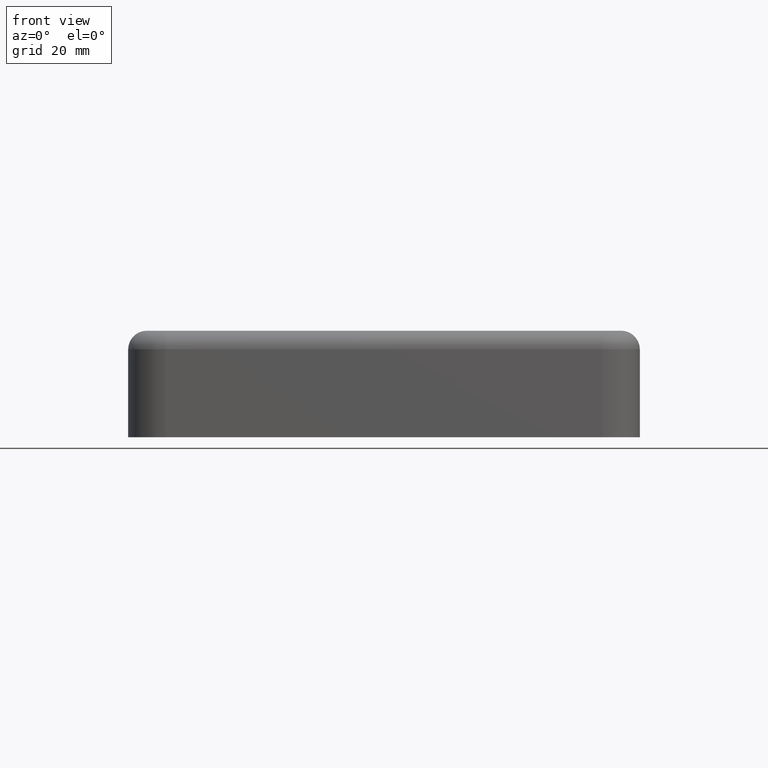
[diagram: clean part render]
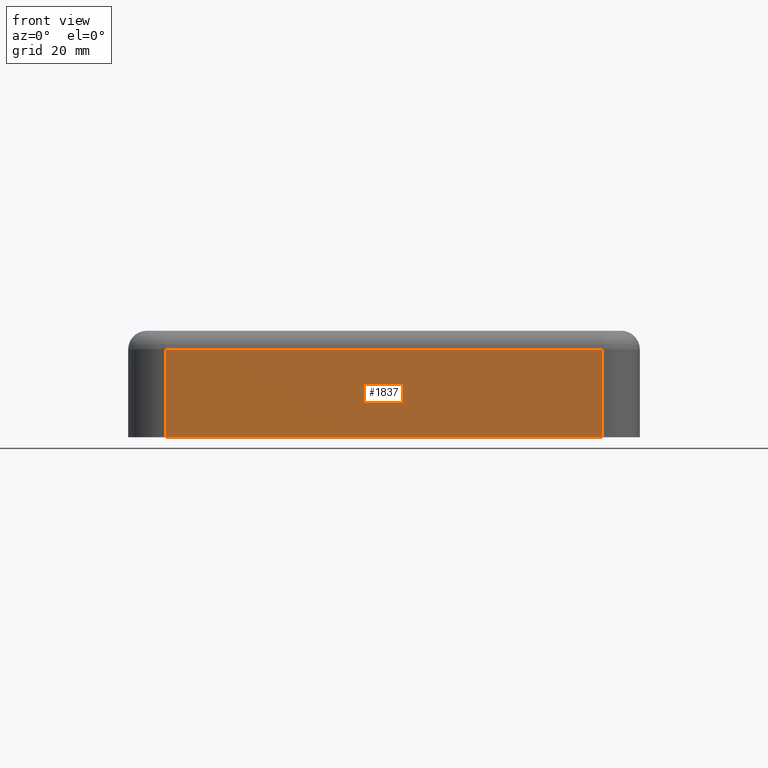
[diagram: same view with one face highlighted and labeled with its STEP entity id]
A machine part, front view. The second image highlights one B-rep face of the part: STEP entity #1837.
In plain terms, the highlighted planar face has unit normal (0, 1, 0).
Its self-contained STEP definition (entity closure, byte-faithful):
#1036 = DIRECTION ( 'NONE',  ( 1.000000000000000000, 0.000000000000000000, 0.000000000000000000 ) ) ;
#1296 = DIRECTION ( 'NONE',  ( 0.000000000000000000, 1.000000000000000000, 0.000000000000000000 ) ) ;
#1837 = ADVANCED_FACE ( 'NONE', ( #2241 ), #13040, .F. ) ;
#1925 = VERTEX_POINT ( 'NONE', #4030 ) ;
#2241 = FACE_OUTER_BOUND ( 'NONE', #10715, .T. ) ;
#2391 = LINE ( 'NONE', #14566, #5428 ) ;
#2485 = CARTESIAN_POINT ( 'NONE',  ( -41.00000000000000000, -48.00000000000000711, 0.000000000000000000 ) ) ;
#2619 = VERTEX_POINT ( 'NONE', #2485 ) ;
#2996 = LINE ( 'NONE', #5820, #5669 ) ;
#3499 = EDGE_CURVE ( 'NONE', #3615, #2619, #2391, .T. ) ;
#3615 = VERTEX_POINT ( 'NONE', #4485 ) ;
#3839 = DIRECTION ( 'NONE',  ( -0.000000000000000000, -0.000000000000000000, 1.000000000000000000 ) ) ;
#3950 = EDGE_CURVE ( 'NONE', #1925, #3615, #5766, .T. ) ;
#4030 = CARTESIAN_POINT ( 'NONE',  ( 40.99999999999999289, -48.00000000000000711, 16.50000000000000000 ) ) ;
#4485 = CARTESIAN_POINT ( 'NONE',  ( -41.00000000000000000, -48.00000000000000711, 16.50000000000000000 ) ) ;
#5428 = VECTOR ( 'NONE', #6515, 1000.000000000000000 ) ;
#5669 = VECTOR ( 'NONE', #1036, 1000.000000000000000 ) ;
#5766 = LINE ( 'NONE', #10082, #11537 ) ;
#5820 = CARTESIAN_POINT ( 'NONE',  ( -48.00000000000000000, -48.00000000000000711, 0.000000000000000000 ) ) ;
#6515 = DIRECTION ( 'NONE',  ( -0.000000000000000000, 0.000000000000000000, -1.000000000000000000 ) ) ;
#7320 = CARTESIAN_POINT ( 'NONE',  ( 40.99999999999999289, -48.00000000000000711, 20.00000000000000000 ) ) ;
#7724 = VECTOR ( 'NONE', #3839, 1000.000000000000000 ) ;
#7954 = CARTESIAN_POINT ( 'NONE',  ( 40.99999999999999289, -48.00000000000000711, 0.000000000000000000 ) ) ;
#8859 = ORIENTED_EDGE ( 'NONE', *, *, #3950, .T. ) ;
#9190 = AXIS2_PLACEMENT_3D ( 'NONE', #13952, #1296, #12683 ) ;
#9357 = ORIENTED_EDGE ( 'NONE', *, *, #10099, .T. ) ;
#10082 = CARTESIAN_POINT ( 'NONE',  ( -48.00000000000000000, -48.00000000000000711, 16.50000000000000000 ) ) ;
#10099 = EDGE_CURVE ( 'NONE', #13059, #1925, #10951, .T. ) ;
#10182 = DIRECTION ( 'NONE',  ( -1.000000000000000000, 0.000000000000000000, -0.000000000000000000 ) ) ;
#10466 = ORIENTED_EDGE ( 'NONE', *, *, #3499, .T. ) ;
#10715 = EDGE_LOOP ( 'NONE', ( #8859, #10466, #11798, #9357 ) ) ;
#10951 = LINE ( 'NONE', #7320, #7724 ) ;
#11537 = VECTOR ( 'NONE', #10182, 1000.000000000000000 ) ;
#11798 = ORIENTED_EDGE ( 'NONE', *, *, #13605, .T. ) ;
#12683 = DIRECTION ( 'NONE',  ( 0.000000000000000000, -0.000000000000000000, 1.000000000000000000 ) ) ;
#13040 = PLANE ( 'NONE',  #9190 ) ;
#13059 = VERTEX_POINT ( 'NONE', #7954 ) ;
#13605 = EDGE_CURVE ( 'NONE', #2619, #13059, #2996, .T. ) ;
#13952 = CARTESIAN_POINT ( 'NONE',  ( -48.00000000000000000, -48.00000000000000711, 20.00000000000000000 ) ) ;
#14566 = CARTESIAN_POINT ( 'NONE',  ( -41.00000000000000000, -48.00000000000000711, 20.00000000000000000 ) ) ;